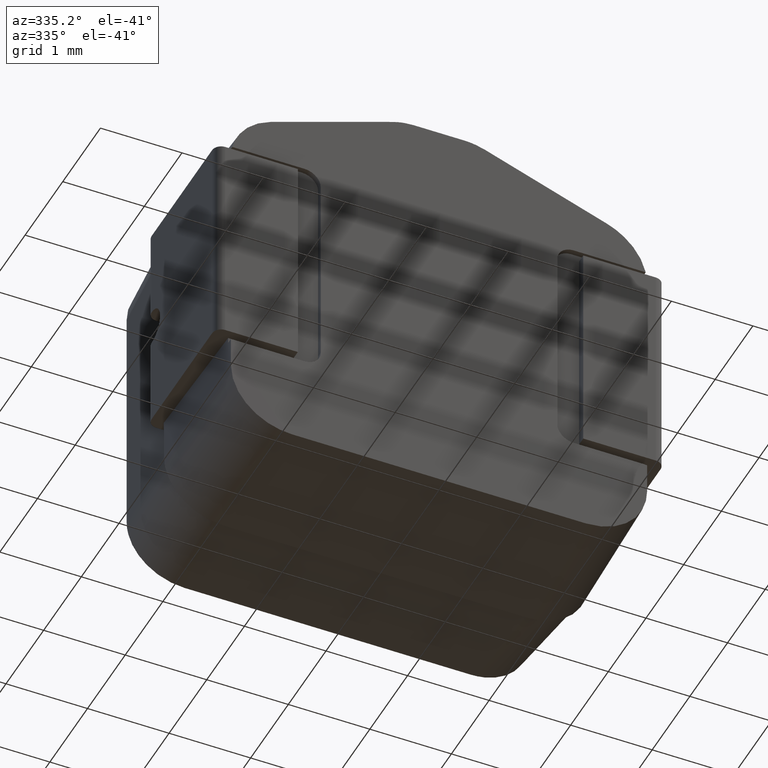
[diagram: clean part render]
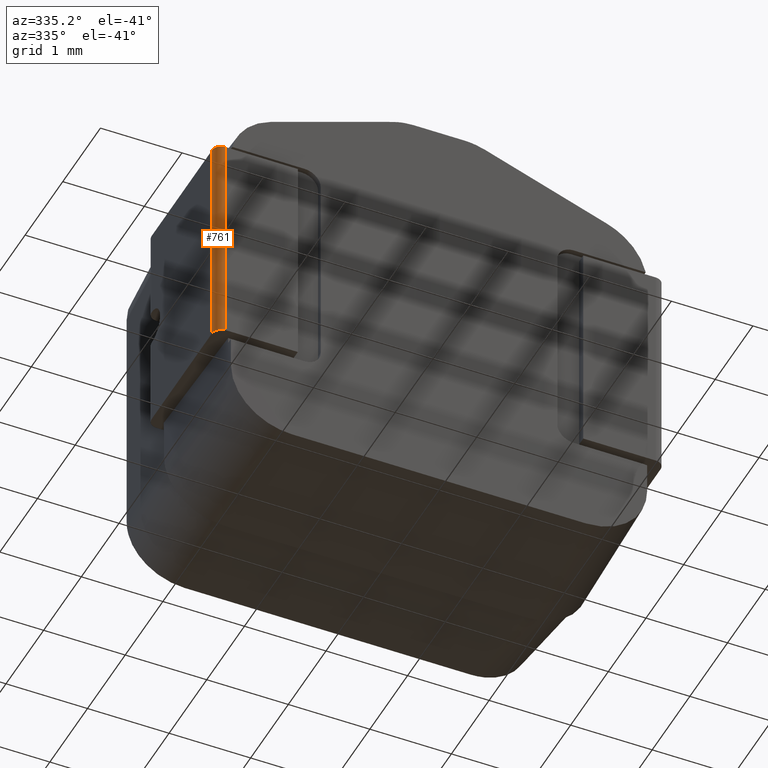
[diagram: same view with one face highlighted and labeled with its STEP entity id]
A machine part, auxiliary view. The second image highlights one B-rep face of the part: STEP entity #761.
In plain terms, the highlighted cylindrical surface (edge-blend (fillet) strip) has radius 0.11 mm, axis along (0, 0, -1).
Its self-contained STEP definition (entity closure, byte-faithful):
#187 = DIRECTION ( 'NONE',  ( 0.0000000000000000000, 0.0000000000000000000, -1.000000000000000000 ) ) ;
#229 = VERTEX_POINT ( 'NONE', #2468 ) ;
#390 = LINE ( 'NONE', #903, #5055 ) ;
#701 = EDGE_LOOP ( 'NONE', ( #3790, #5406, #2675, #830 ) ) ;
#761 = ADVANCED_FACE ( 'NONE', ( #3346 ), #1491, .T. ) ;
#830 = ORIENTED_EDGE ( 'NONE', *, *, #3736, .T. ) ;
#903 = CARTESIAN_POINT ( 'NONE',  ( -2.750000000000001776, 0.06999999999999996503, 1.350000000000000089 ) ) ;
#942 = CARTESIAN_POINT ( 'NONE',  ( -2.640000000000001901, 0.06999999999999996503, -1.350000000000000089 ) ) ;
#1084 = CARTESIAN_POINT ( 'NONE',  ( -2.640000000000001901, 0.06999999999999996503, 1.350000000000000089 ) ) ;
#1113 = AXIS2_PLACEMENT_3D ( 'NONE', #942, #1822, #2349 ) ;
#1304 = CARTESIAN_POINT ( 'NONE',  ( -2.640000000000001901, -0.04000000000000002165, 1.350000000000000089 ) ) ;
#1312 = CARTESIAN_POINT ( 'NONE',  ( -2.640000000000001901, -0.04000000000000002165, -1.350000000000000089 ) ) ;
#1467 = LINE ( 'NONE', #1304, #2750 ) ;
#1480 = CIRCLE ( 'NONE', #1113, 0.1099999999999998479 ) ;
#1491 = CYLINDRICAL_SURFACE ( 'NONE', #3056, 0.1099999999999998479 ) ;
#1793 = DIRECTION ( 'NONE',  ( 0.0000000000000000000, 0.0000000000000000000, -1.000000000000000000 ) ) ;
#1822 = DIRECTION ( 'NONE',  ( -0.0000000000000000000, -0.0000000000000000000, 1.000000000000000000 ) ) ;
#1859 = DIRECTION ( 'NONE',  ( 0.0000000000000000000, 0.0000000000000000000, -1.000000000000000000 ) ) ;
#1901 = DIRECTION ( 'NONE',  ( 1.000000000000000000, 0.0000000000000000000, 0.0000000000000000000 ) ) ;
#1925 = EDGE_CURVE ( 'NONE', #229, #3222, #1480, .T. ) ;
#2344 = CARTESIAN_POINT ( 'NONE',  ( -2.640000000000001901, 0.06999999999999996503, 1.350000000000000089 ) ) ;
#2349 = DIRECTION ( 'NONE',  ( 1.000000000000000000, 0.0000000000000000000, 0.0000000000000000000 ) ) ;
#2468 = CARTESIAN_POINT ( 'NONE',  ( -2.750000000000001776, 0.06999999999999996503, -1.350000000000000089 ) ) ;
#2675 = ORIENTED_EDGE ( 'NONE', *, *, #1925, .T. ) ;
#2676 = DIRECTION ( 'NONE',  ( -0.0000000000000000000, -0.0000000000000000000, 1.000000000000000000 ) ) ;
#2750 = VECTOR ( 'NONE', #2676, 1000.000000000000000 ) ;
#3056 = AXIS2_PLACEMENT_3D ( 'NONE', #1084, #187, #4305 ) ;
#3222 = VERTEX_POINT ( 'NONE', #1312 ) ;
#3346 = FACE_OUTER_BOUND ( 'NONE', #701, .T. ) ;
#3434 = CARTESIAN_POINT ( 'NONE',  ( -2.640000000000001901, -0.04000000000000002165, 1.350000000000000089 ) ) ;
#3736 = EDGE_CURVE ( 'NONE', #3222, #4140, #1467, .T. ) ;
#3790 = ORIENTED_EDGE ( 'NONE', *, *, #5104, .T. ) ;
#4140 = VERTEX_POINT ( 'NONE', #3434 ) ;
#4218 = AXIS2_PLACEMENT_3D ( 'NONE', #2344, #1859, #1901 ) ;
#4305 = DIRECTION ( 'NONE',  ( 1.000000000000000000, 0.0000000000000000000, 0.0000000000000000000 ) ) ;
#5055 = VECTOR ( 'NONE', #1793, 1000.000000000000000 ) ;
#5104 = EDGE_CURVE ( 'NONE', #4140, #5620, #5348, .T. ) ;
#5143 = CARTESIAN_POINT ( 'NONE',  ( -2.750000000000001776, 0.06999999999999996503, 1.350000000000000089 ) ) ;
#5348 = CIRCLE ( 'NONE', #4218, 0.1099999999999998479 ) ;
#5392 = EDGE_CURVE ( 'NONE', #5620, #229, #390, .T. ) ;
#5406 = ORIENTED_EDGE ( 'NONE', *, *, #5392, .T. ) ;
#5620 = VERTEX_POINT ( 'NONE', #5143 ) ;